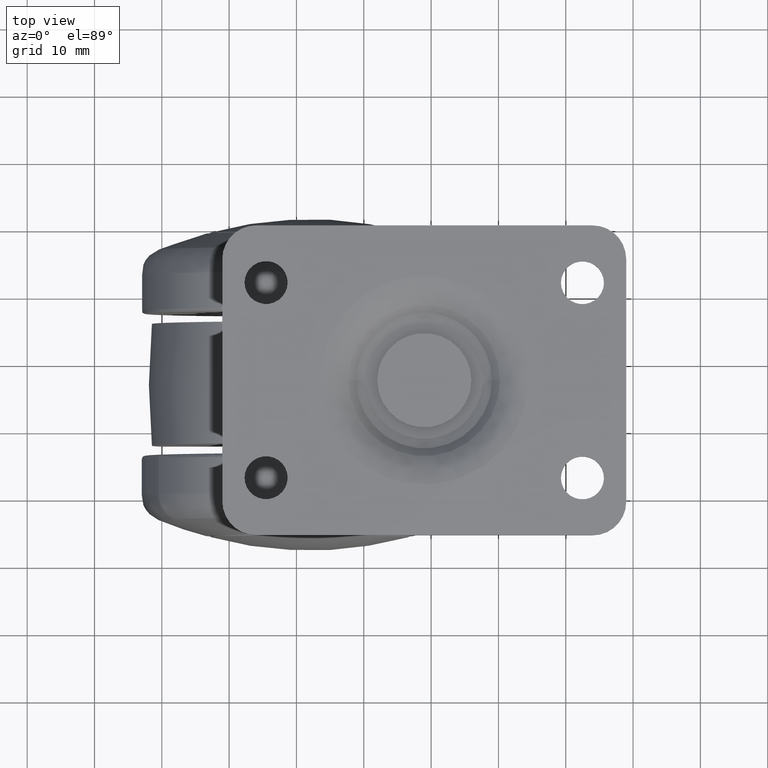
[diagram: clean part render]
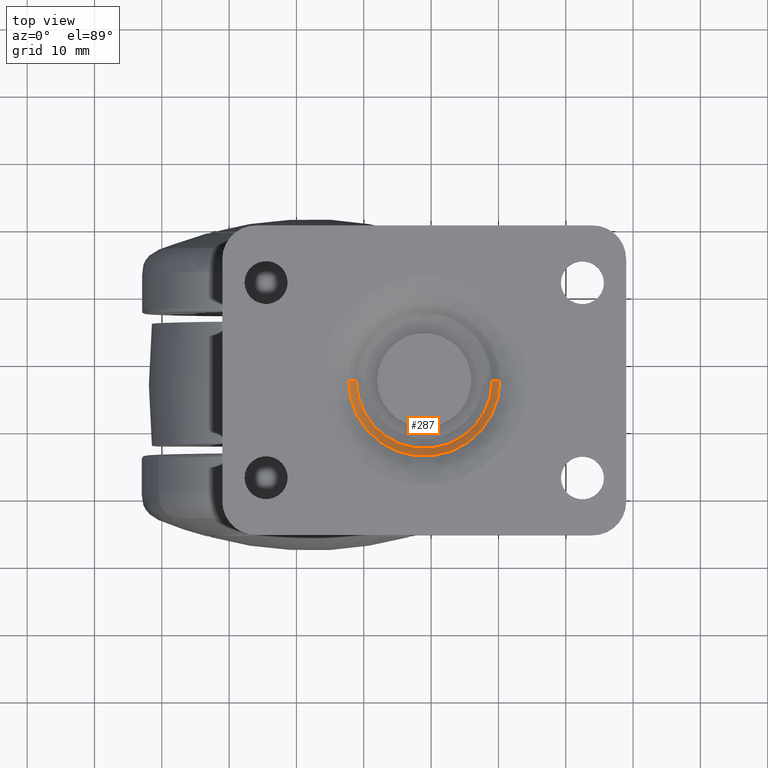
[diagram: same view with one face highlighted and labeled with its STEP entity id]
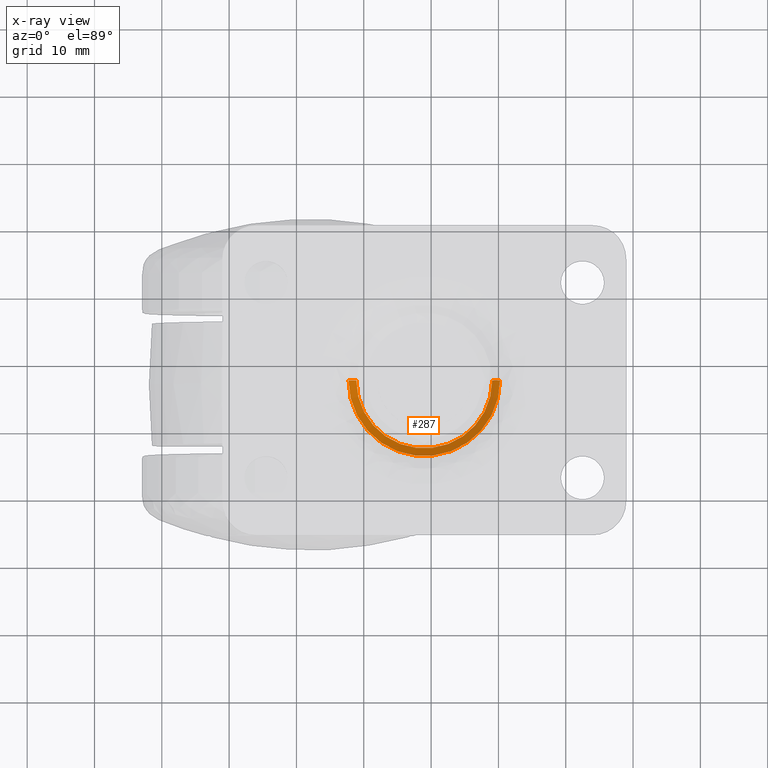
[diagram: x-ray of the same camera — body ghosted, the highlighted face saturated]
A machine part, top view. The second image highlights one B-rep face of the part: STEP entity #287.
The next image is the same camera in x-ray: the body ghosted, the highlighted face saturated — about 0% of this face is hidden behind the body in this view.
In plain terms, the highlighted face is a freeform B-spline surface patch.
Its self-contained STEP definition (entity closure, byte-faithful):
#287=ADVANCED_FACE('',(#1609),#1608,.F.);
#1608=( BOUNDED_SURFACE() B_SPLINE_SURFACE( 2,1,((#6356,#6357),(#6358,#6359),(#6360,#6361),(#6362,#6363),(#6364,#6365)), .UNSPECIFIED.,.F.,.F.,.F.) B_SPLINE_SURFACE_WITH_KNOTS((3,2,3),(2,2),(0.00000000000E+00,5.00000000000E-01,1.00000000000E+00),(0.00000000000E+00,1.00000000000E+00), .UNSPECIFIED. ) GEOMETRIC_REPRESENTATION_ITEM() RATIONAL_B_SPLINE_SURFACE(((1.00000000000E+00,1.00000000000E+00),(7.07106781187E-01,7.07106781187E-01),(1.00000000000E+00,1.00000000000E+00),(7.07106781187E-01,7.07106781187E-01),(1.00000000000E+00,1.00000000000E+00))) REPRESENTATION_ITEM('') SURFACE() );
#1609=FACE_OUTER_BOUND('',#6366,.T.);
#6356=CARTESIAN_POINT('',(0.00000000000E+00,1.29729344729E+01,4.52947586223E-14));
#6357=CARTESIAN_POINT('',(-3.89807863297E-15,-2.89683711568E+00,1.59151137931E+01));
#6358=CARTESIAN_POINT('',(0.00000000000E+00,1.29729344729E+01,4.52947586223E-14));
#6359=CARTESIAN_POINT('',(-1.59151137931E+01,-2.89683711568E+00,1.59151137931E+01));
#6360=CARTESIAN_POINT('',(0.00000000000E+00,1.29729344729E+01,4.52947586223E-14));
#6361=CARTESIAN_POINT('',(-1.59151137931E+01,-2.89683711568E+00,-1.30378117058E-14));
#6362=CARTESIAN_POINT('',(0.00000000000E+00,1.29729344729E+01,4.52947586223E-14));
#6363=CARTESIAN_POINT('',(-1.59151137931E+01,-2.89683711568E+00,-1.59151137931E+01));
#6364=CARTESIAN_POINT('',(0.00000000000E+00,1.29729344729E+01,4.52947586223E-14));
#6365=CARTESIAN_POINT('',(1.94903931648E-15,-2.89683711568E+00,-1.59151137931E+01));
#6366=EDGE_LOOP('',(#7041,#7042,#7043,#7044));
#7041=ORIENTED_EDGE('',*,*,#7335,.T.);
#7042=ORIENTED_EDGE('',*,*,#7370,.F.);
#7043=ORIENTED_EDGE('',*,*,#7338,.T.);
#7044=ORIENTED_EDGE('',*,*,#7371,.T.);
#7335=EDGE_CURVE('',#9152,#9145,#9153,.T.);
#7338=EDGE_CURVE('',#9171,#9172,#9173,.T.);
#7370=EDGE_CURVE('',#9171,#9145,#9375,.T.);
#7371=EDGE_CURVE('',#9172,#9152,#9381,.T.);
#9145=VERTEX_POINT('',#10853);
#9152=VERTEX_POINT('',#10857);
#9153=CIRCLE('',#10861,1.12536848865E+01);
#9171=VERTEX_POINT('',#10869);
#9172=VERTEX_POINT('',#10870);
#9173=CIRCLE('',#10874,1.00854383712E+01);
#9375=(BOUNDED_CURVE() B_SPLINE_CURVE(1,(#10978,#10979),.UNSPECIFIED.,.F.,.F.) B_SPLINE_CURVE_WITH_KNOTS((2,2),(6.33701933921E-01,7.07106780419E-01),.UNSPECIFIED.) CURVE() GEOMETRIC_REPRESENTATION_ITEM() RATIONAL_B_SPLINE_CURVE((1.00000000000E+00,1.00000000000E+00)) REPRESENTATION_ITEM('') );
#9381=(BOUNDED_CURVE() B_SPLINE_CURVE(1,(#10980,#10981),.UNSPECIFIED.,.F.,.F.) B_SPLINE_CURVE_WITH_KNOTS((2,2),(6.33701932126E-01,7.07106781071E-01),.UNSPECIFIED.) CURVE() GEOMETRIC_REPRESENTATION_ITEM() RATIONAL_B_SPLINE_CURVE((7.50000000000E-01,7.50000000000E-01)) REPRESENTATION_ITEM('') );
#10853=CARTESIAN_POINT('',(0.00000000000E+00,1.75131136675E+00,-1.12536848865E+01));
#10857=CARTESIAN_POINT('',(1.37813340159E-15,1.75131136675E+00,1.12536848865E+01));
#10858=CARTESIAN_POINT('',(0.00000000000E+00,1.75131136675E+00,6.11467095550E-15));
#10859=DIRECTION('',(0.00000000000E+00,-1.00000000000E+00,0.00000000000E+00));
#10860=DIRECTION('',(-0.00000000000E+00,-0.00000000000E+00,1.00000000000E+00));
#10861=AXIS2_PLACEMENT_3D('',#10858,#10859,#10860);
#10869=CARTESIAN_POINT('',(-5.92118946467E-16,2.91622954442E+00,-1.00854383712E+01));
#10870=CARTESIAN_POINT('',(-1.23506919104E-15,2.91622954442E+00,1.00854383712E+01));
#10871=CARTESIAN_POINT('',(0.00000000000E+00,2.91622954442E+00,1.01819610341E-14));
#10872=DIRECTION('',(0.00000000000E+00,1.00000000000E+00,3.47858430016E-15));
#10873=DIRECTION('',(-0.00000000000E+00,-3.47858430016E-15,1.00000000000E+00));
#10874=AXIS2_PLACEMENT_3D('',#10871,#10872,#10873);
#10978=CARTESIAN_POINT('',(3.70532995243E-15,2.91622952635E+00,-1.00854383893E+01));
#10979=CARTESIAN_POINT('',(4.13453674797E-15,1.75131137892E+00,-1.12536848743E+01));
#10980=CARTESIAN_POINT('',(-4.12749612467E-15,2.91622955483E+00,1.00854383607E+01));
#10981=CARTESIAN_POINT('',(-4.60560454472E-15,1.75131136858E+00,1.12536848846E+01));